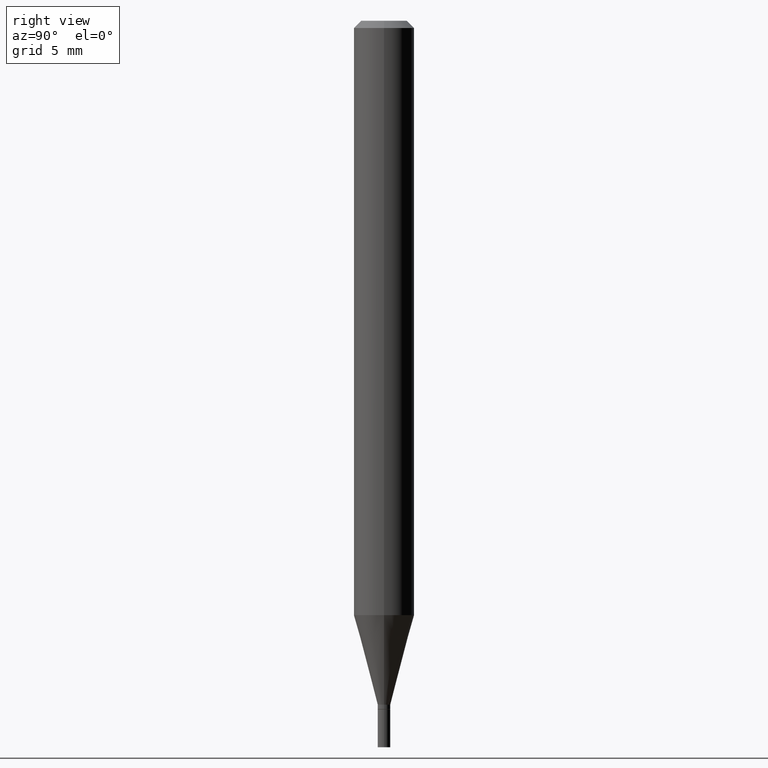
[diagram: clean part render]
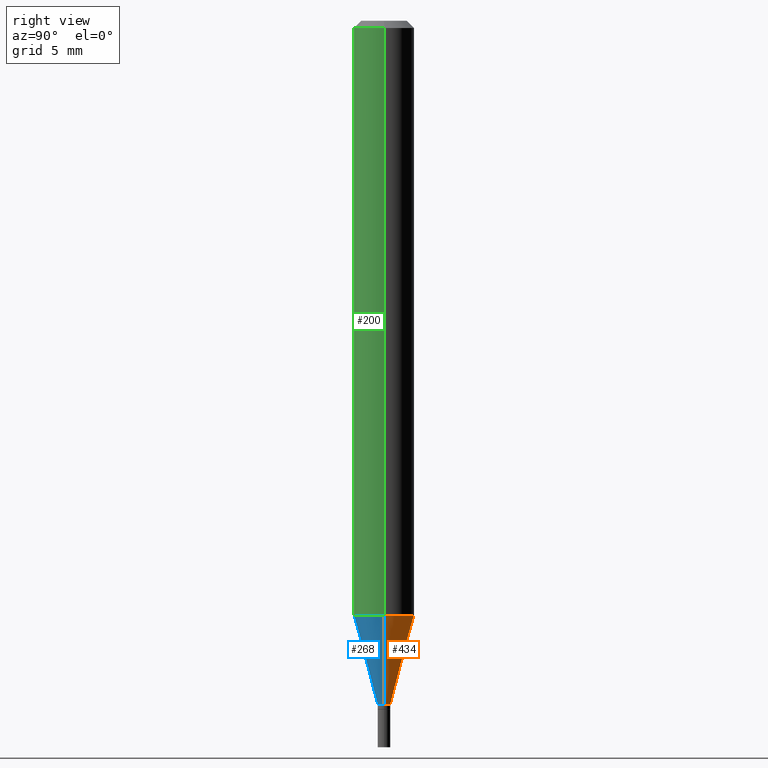
[diagram: same view with three faces highlighted in distinct colors, each labeled with its STEP entity id]
A machine part, right view with three faces highlighted in distinct colors.
Their STEP definitions:

[orange] entity #434 — the highlighted conical surface has half-angle 15 deg.
#15 = LINE ( 'NONE', #264, #291 ) ;
#30 = EDGE_CURVE ( 'NONE', #92, #398, #454, .T. ) ;
#57 = DIRECTION ( 'NONE',  ( 1.000000000000000000, -6.982962677686299843E-15, 0.000000000000000000 ) ) ;
#68 = EDGE_CURVE ( 'NONE', #118, #345, #208, .T. ) ;
#79 = CARTESIAN_POINT ( 'NONE',  ( -0.06249999999999999306, -3.840878345959517263E-15, -1.227263485025340550 ) ) ;
#81 = DIRECTION ( 'NONE',  ( -2.445468806185136597E-29, 3.491481338843145583E-15, 1.000000000000000000 ) ) ;
#85 = DIRECTION ( 'NONE',  ( -2.445468806185136597E-29, 3.491481338843145583E-15, 1.000000000000000000 ) ) ;
#92 = VERTEX_POINT ( 'NONE', #435 ) ;
#113 = CARTESIAN_POINT ( 'NONE',  ( 3.001234569599529890E-29, -4.284967555809580668E-15, -1.227263485025340550 ) ) ;
#115 = AXIS2_PLACEMENT_3D ( 'NONE', #193, #147, #223 ) ;
#118 = VERTEX_POINT ( 'NONE', #287 ) ;
#138 = AXIS2_PLACEMENT_3D ( 'NONE', #113, #85, #444 ) ;
#147 = DIRECTION ( 'NONE',  ( -2.445468806185136597E-29, 3.491481338843145583E-15, 1.000000000000000000 ) ) ;
#193 = CARTESIAN_POINT ( 'NONE',  ( 3.453001954333413314E-29, -4.929971650446521716E-15, -1.412000000000000144 ) ) ;
#208 = CIRCLE ( 'NONE', #138, 0.06250000000000000000 ) ;
#212 = EDGE_CURVE ( 'NONE', #398, #345, #408, .T. ) ;
#223 = DIRECTION ( 'NONE',  ( 1.000000000000000000, -6.982962677686299843E-15, 0.000000000000000000 ) ) ;
#226 = CARTESIAN_POINT ( 'NONE',  ( -0.01299999999999992134, -4.837601094797709398E-15, -1.412000000000000144 ) ) ;
#264 = CARTESIAN_POINT ( 'NONE',  ( 0.01299999999999992134, -5.020750165256443057E-15, -1.412000000000000144 ) ) ;
#265 = EDGE_LOOP ( 'NONE', ( #316, #375, #351, #288 ) ) ;
#269 = CARTESIAN_POINT ( 'NONE',  ( -0.01299999999999992134, -4.339239720378613725E-15, -1.412000000000000144 ) ) ;
#273 = CARTESIAN_POINT ( 'NONE',  ( 3.453001954333413314E-29, -4.929971650446521716E-15, -1.412000000000000144 ) ) ;
#287 = CARTESIAN_POINT ( 'NONE',  ( 0.06249999999999999306, -4.721402723164972337E-15, -1.227263485025340550 ) ) ;
#288 = ORIENTED_EDGE ( 'NONE', *, *, #330, .F. ) ;
#291 = VECTOR ( 'NONE', #411, 39.37007874015748854 ) ;
#302 = FACE_OUTER_BOUND ( 'NONE', #265, .T. ) ;
#316 = ORIENTED_EDGE ( 'NONE', *, *, #30, .T. ) ;
#330 = EDGE_CURVE ( 'NONE', #92, #118, #15, .T. ) ;
#345 = VERTEX_POINT ( 'NONE', #79 ) ;
#351 = ORIENTED_EDGE ( 'NONE', *, *, #68, .F. ) ;
#361 = VECTOR ( 'NONE', #378, 39.37007874015748854 ) ;
#365 = CONICAL_SURFACE ( 'NONE', #462, 0.01299999999999992134, 0.2617993877991495189 ) ;
#375 = ORIENTED_EDGE ( 'NONE', *, *, #212, .T. ) ;
#378 = DIRECTION ( 'NONE',  ( -0.2588190451025207950, 5.211531920934546309E-15, 0.9659258262890682012 ) ) ;
#398 = VERTEX_POINT ( 'NONE', #269 ) ;
#408 = LINE ( 'NONE', #226, #361 ) ;
#411 = DIRECTION ( 'NONE',  ( 0.2588190451025207950, 1.565188264969625912E-15, 0.9659258262890682012 ) ) ;
#434 = ADVANCED_FACE ( 'NONE', ( #302 ), #365, .T. ) ;
#435 = CARTESIAN_POINT ( 'NONE',  ( 0.01299999999999992134, -5.020750165256443057E-15, -1.412000000000000144 ) ) ;
#444 = DIRECTION ( 'NONE',  ( 1.000000000000000000, -6.982962677686270655E-15, 0.000000000000000000 ) ) ;
#454 = CIRCLE ( 'NONE', #115, 0.01299999999999992134 ) ;
#462 = AXIS2_PLACEMENT_3D ( 'NONE', #273, #81, #57 ) ;

[blue] entity #268 — the highlighted conical surface has half-angle 15 deg.
#6 = ORIENTED_EDGE ( 'NONE', *, *, #212, .F. ) ;
#15 = LINE ( 'NONE', #264, #291 ) ;
#17 = DIRECTION ( 'NONE',  ( -2.445468806185136597E-29, 3.491481338843145583E-15, 1.000000000000000000 ) ) ;
#29 = DIRECTION ( 'NONE',  ( -2.445468806185136597E-29, 3.491481338843145583E-15, 1.000000000000000000 ) ) ;
#45 = EDGE_CURVE ( 'NONE', #398, #92, #176, .T. ) ;
#63 = CIRCLE ( 'NONE', #280, 0.06250000000000000000 ) ;
#73 = DIRECTION ( 'NONE',  ( -2.445468806185136597E-29, 3.491481338843145583E-15, 1.000000000000000000 ) ) ;
#79 = CARTESIAN_POINT ( 'NONE',  ( -0.06249999999999999306, -3.840878345959517263E-15, -1.227263485025340550 ) ) ;
#92 = VERTEX_POINT ( 'NONE', #435 ) ;
#118 = VERTEX_POINT ( 'NONE', #287 ) ;
#124 = EDGE_LOOP ( 'NONE', ( #6, #456, #461, #192 ) ) ;
#128 = FACE_OUTER_BOUND ( 'NONE', #124, .T. ) ;
#135 = AXIS2_PLACEMENT_3D ( 'NONE', #284, #29, #242 ) ;
#152 = EDGE_CURVE ( 'NONE', #345, #118, #63, .T. ) ;
#157 = DIRECTION ( 'NONE',  ( 1.000000000000000000, -6.982962677686270655E-15, 0.000000000000000000 ) ) ;
#176 = CIRCLE ( 'NONE', #436, 0.01299999999999992134 ) ;
#192 = ORIENTED_EDGE ( 'NONE', *, *, #152, .F. ) ;
#212 = EDGE_CURVE ( 'NONE', #398, #345, #408, .T. ) ;
#226 = CARTESIAN_POINT ( 'NONE',  ( -0.01299999999999992134, -4.837601094797709398E-15, -1.412000000000000144 ) ) ;
#242 = DIRECTION ( 'NONE',  ( 1.000000000000000000, -6.982962677686299843E-15, 0.000000000000000000 ) ) ;
#263 = CARTESIAN_POINT ( 'NONE',  ( 3.001234569599529890E-29, -4.284967555809580668E-15, -1.227263485025340550 ) ) ;
#264 = CARTESIAN_POINT ( 'NONE',  ( 0.01299999999999992134, -5.020750165256443057E-15, -1.412000000000000144 ) ) ;
#268 = ADVANCED_FACE ( 'NONE', ( #128 ), #455, .T. ) ;
#269 = CARTESIAN_POINT ( 'NONE',  ( -0.01299999999999992134, -4.339239720378613725E-15, -1.412000000000000144 ) ) ;
#280 = AXIS2_PLACEMENT_3D ( 'NONE', #263, #17, #157 ) ;
#284 = CARTESIAN_POINT ( 'NONE',  ( 3.453001954333413314E-29, -4.929971650446521716E-15, -1.412000000000000144 ) ) ;
#287 = CARTESIAN_POINT ( 'NONE',  ( 0.06249999999999999306, -4.721402723164972337E-15, -1.227263485025340550 ) ) ;
#291 = VECTOR ( 'NONE', #411, 39.37007874015748854 ) ;
#300 = CARTESIAN_POINT ( 'NONE',  ( 3.453001954333413314E-29, -4.929971650446521716E-15, -1.412000000000000144 ) ) ;
#330 = EDGE_CURVE ( 'NONE', #92, #118, #15, .T. ) ;
#345 = VERTEX_POINT ( 'NONE', #79 ) ;
#361 = VECTOR ( 'NONE', #378, 39.37007874015748854 ) ;
#378 = DIRECTION ( 'NONE',  ( -0.2588190451025207950, 5.211531920934546309E-15, 0.9659258262890682012 ) ) ;
#398 = VERTEX_POINT ( 'NONE', #269 ) ;
#407 = DIRECTION ( 'NONE',  ( 1.000000000000000000, -6.982962677686299843E-15, 0.000000000000000000 ) ) ;
#408 = LINE ( 'NONE', #226, #361 ) ;
#411 = DIRECTION ( 'NONE',  ( 0.2588190451025207950, 1.565188264969625912E-15, 0.9659258262890682012 ) ) ;
#435 = CARTESIAN_POINT ( 'NONE',  ( 0.01299999999999992134, -5.020750165256443057E-15, -1.412000000000000144 ) ) ;
#436 = AXIS2_PLACEMENT_3D ( 'NONE', #300, #73, #407 ) ;
#455 = CONICAL_SURFACE ( 'NONE', #135, 0.01299999999999992134, 0.2617993877991495189 ) ;
#456 = ORIENTED_EDGE ( 'NONE', *, *, #45, .T. ) ;
#461 = ORIENTED_EDGE ( 'NONE', *, *, #330, .T. ) ;

[green] entity #200 — the highlighted cylindrical surface (edge-blend (fillet) strip) has radius 1.5875 mm, axis along (-0, 0, 1).
#11 = EDGE_CURVE ( 'NONE', #390, #366, #134, .T. ) ;
#17 = DIRECTION ( 'NONE',  ( -2.445468806185136597E-29, 3.491481338843145583E-15, 1.000000000000000000 ) ) ;
#24 = ORIENTED_EDGE ( 'NONE', *, *, #172, .F. ) ;
#32 = CARTESIAN_POINT ( 'NONE',  ( 0.06250000000000000000, -4.888073874380388472E-16, -0.01499999999999999944 ) ) ;
#37 = LINE ( 'NONE', #387, #289 ) ;
#43 = ORIENTED_EDGE ( 'NONE', *, *, #221, .T. ) ;
#56 = LINE ( 'NONE', #198, #116 ) ;
#63 = CIRCLE ( 'NONE', #280, 0.06250000000000000000 ) ;
#69 = DIRECTION ( 'NONE',  ( -2.445468806185136877E-29, 3.491481338843145188E-15, 1.000000000000000000 ) ) ;
#72 = AXIS2_PLACEMENT_3D ( 'NONE', #139, #105, #426 ) ;
#79 = CARTESIAN_POINT ( 'NONE',  ( -0.06249999999999999306, -3.840878345959517263E-15, -1.227263485025340550 ) ) ;
#105 = DIRECTION ( 'NONE',  ( -2.445468806185136597E-29, 3.491481338843145583E-15, 1.000000000000000000 ) ) ;
#116 = VECTOR ( 'NONE', #355, 39.37007874015748143 ) ;
#118 = VERTEX_POINT ( 'NONE', #287 ) ;
#134 = CIRCLE ( 'NONE', #173, 0.06250000000000000000 ) ;
#139 = CARTESIAN_POINT ( 'NONE',  ( 0.000000000000000000, 0.000000000000000000, 0.000000000000000000 ) ) ;
#146 = EDGE_LOOP ( 'NONE', ( #24, #276, #43, #325 ) ) ;
#152 = EDGE_CURVE ( 'NONE', #345, #118, #63, .T. ) ;
#157 = DIRECTION ( 'NONE',  ( 1.000000000000000000, -6.982962677686270655E-15, 0.000000000000000000 ) ) ;
#168 = CARTESIAN_POINT ( 'NONE',  ( -0.06250000000000000000, -1.724580678096051257E-15, -0.01499999999999999944 ) ) ;
#172 = EDGE_CURVE ( 'NONE', #345, #390, #37, .T. ) ;
#173 = AXIS2_PLACEMENT_3D ( 'NONE', #312, #384, #367 ) ;
#198 = CARTESIAN_POINT ( 'NONE',  ( 0.06250000000000000000, -4.364351673553916694E-16, 3.047610484872459871E-30 ) ) ;
#200 = ADVANCED_FACE ( 'NONE', ( #465 ), #329, .T. ) ;
#221 = EDGE_CURVE ( 'NONE', #118, #366, #56, .T. ) ;
#263 = CARTESIAN_POINT ( 'NONE',  ( 3.001234569599529890E-29, -4.284967555809580668E-15, -1.227263485025340550 ) ) ;
#276 = ORIENTED_EDGE ( 'NONE', *, *, #152, .T. ) ;
#280 = AXIS2_PLACEMENT_3D ( 'NONE', #263, #17, #157 ) ;
#287 = CARTESIAN_POINT ( 'NONE',  ( 0.06249999999999999306, -4.721402723164972337E-15, -1.227263485025340550 ) ) ;
#289 = VECTOR ( 'NONE', #69, 39.37007874015748143 ) ;
#312 = CARTESIAN_POINT ( 'NONE',  ( 3.668203209277705088E-31, -5.237222008264718399E-17, -0.01499999999999999944 ) ) ;
#325 = ORIENTED_EDGE ( 'NONE', *, *, #11, .F. ) ;
#329 = CYLINDRICAL_SURFACE ( 'NONE', #72, 0.06250000000000000000 ) ;
#345 = VERTEX_POINT ( 'NONE', #79 ) ;
#355 = DIRECTION ( 'NONE',  ( -2.445468806185136877E-29, 3.491481338843145188E-15, 1.000000000000000000 ) ) ;
#366 = VERTEX_POINT ( 'NONE', #32 ) ;
#367 = DIRECTION ( 'NONE',  ( 1.000000000000000000, -6.982962677686266711E-15, 0.000000000000000000 ) ) ;
#384 = DIRECTION ( 'NONE',  ( -2.445468806185136597E-29, 3.491481338843145583E-15, 1.000000000000000000 ) ) ;
#387 = CARTESIAN_POINT ( 'NONE',  ( -0.06250000000000000000, 4.440892098500626162E-16, -3.074334431409316114E-30 ) ) ;
#390 = VERTEX_POINT ( 'NONE', #168 ) ;
#426 = DIRECTION ( 'NONE',  ( 1.000000000000000000, -6.982962677686266711E-15, 4.876176775795935793E-29 ) ) ;
#465 = FACE_OUTER_BOUND ( 'NONE', #146, .T. ) ;